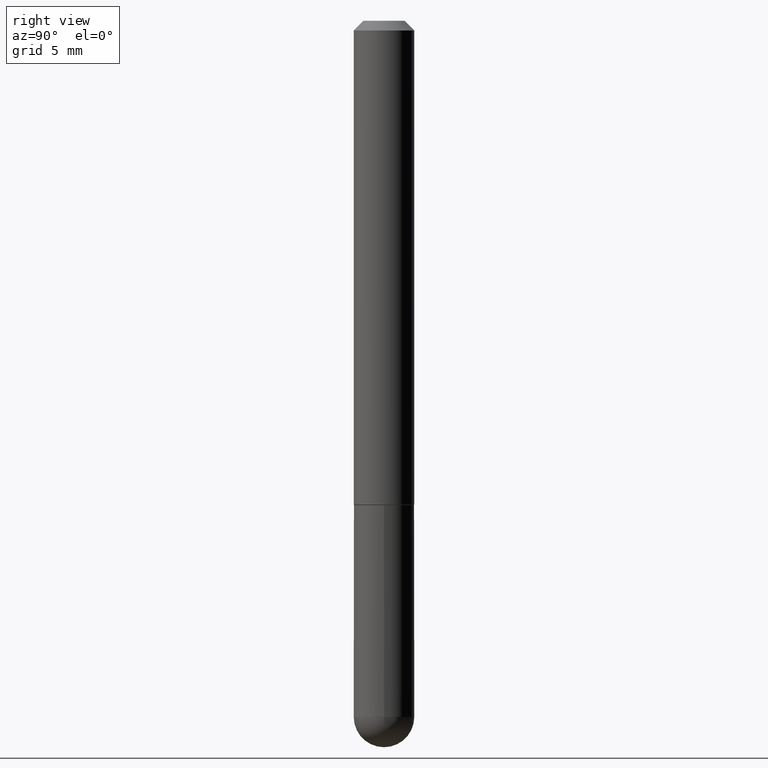
[diagram: clean part render]
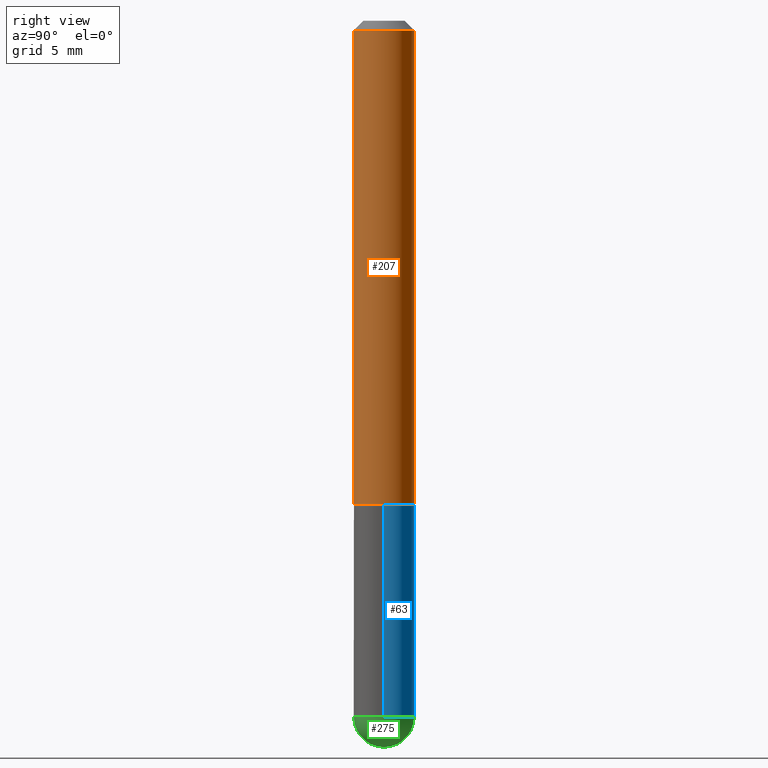
[diagram: same view with three faces highlighted in distinct colors, each labeled with its STEP entity id]
A machine part, right view with three faces highlighted in distinct colors.
Their STEP definitions:

[orange] entity #207 — the highlighted cylindrical surface (edge-blend (fillet) strip) has radius 1.5875 mm, axis along (-0, 0, 1).
#12 = AXIS2_PLACEMENT_3D ( 'NONE', #368, #58, #218 ) ;
#30 = DIRECTION ( 'NONE',  ( -6.982962677686265922E-15, -1.000000000000000000, 3.470349489417668570E-15 ) ) ;
#34 = CYLINDRICAL_SURFACE ( 'NONE', #223, 0.06250000000000004163 ) ;
#58 = DIRECTION ( 'NONE',  ( -2.460225097769995891E-29, 3.470349489417668570E-15, 1.000000000000000000 ) ) ;
#81 = EDGE_CURVE ( 'NONE', #180, #394, #355, .T. ) ;
#99 = FACE_OUTER_BOUND ( 'NONE', #231, .T. ) ;
#101 = VECTOR ( 'NONE', #112, 39.37007874015748143 ) ;
#112 = DIRECTION ( 'NONE',  ( -2.460225097769996171E-29, 3.470349489417668175E-15, 1.000000000000000000 ) ) ;
#114 = VERTEX_POINT ( 'NONE', #146 ) ;
#117 = CARTESIAN_POINT ( 'NONE',  ( 4.440892098500628134E-16, 0.06250000000000004163, -2.168968430886044335E-16 ) ) ;
#126 = DIRECTION ( 'NONE',  ( -2.460225097769995891E-29, 3.470349489417668570E-15, 1.000000000000000000 ) ) ;
#132 = EDGE_CURVE ( 'NONE', #180, #114, #170, .T. ) ;
#146 = CARTESIAN_POINT ( 'NONE',  ( 4.440892098500754352E-16, 0.06249999999999659994, -0.9990000000000002212 ) ) ;
#161 = EDGE_CURVE ( 'NONE', #114, #281, #396, .T. ) ;
#170 = CIRCLE ( 'NONE', #12, 0.06250000000000006939 ) ;
#171 = CARTESIAN_POINT ( 'NONE',  ( 4.364351673553922118E-16, 0.06249999999999995143, -0.02000000000000028491 ) ) ;
#173 = DIRECTION ( 'NONE',  ( -2.460225097769995891E-29, 3.470349489417668570E-15, 1.000000000000000000 ) ) ;
#174 = CARTESIAN_POINT ( 'NONE',  ( -4.364351673553675105E-16, -0.06250000000000353884, -0.9989999999999996660 ) ) ;
#180 = VERTEX_POINT ( 'NONE', #174 ) ;
#194 = CARTESIAN_POINT ( 'NONE',  ( -4.364351673553919159E-16, -0.06250000000000004163, 2.168968430886044335E-16 ) ) ;
#206 = CARTESIAN_POINT ( 'NONE',  ( -4.287811248607203282E-16, -0.06250000000000008327, -0.01999999999999985123 ) ) ;
#207 = ADVANCED_FACE ( 'NONE', ( #99 ), #34, .T. ) ;
#213 = CIRCLE ( 'NONE', #247, 0.06250000000000001388 ) ;
#218 = DIRECTION ( 'NONE',  ( -6.982962677686265922E-15, -1.000000000000000000, 4.370956789862816416E-15 ) ) ;
#221 = ORIENTED_EDGE ( 'NONE', *, *, #132, .T. ) ;
#223 = AXIS2_PLACEMENT_3D ( 'NONE', #288, #126, #30 ) ;
#231 = EDGE_LOOP ( 'NONE', ( #221, #376, #267, #332 ) ) ;
#234 = VECTOR ( 'NONE', #238, 39.37007874015748143 ) ;
#238 = DIRECTION ( 'NONE',  ( -2.460225097769996171E-29, 3.470349489417668175E-15, 1.000000000000000000 ) ) ;
#247 = AXIS2_PLACEMENT_3D ( 'NONE', #334, #173, #301 ) ;
#267 = ORIENTED_EDGE ( 'NONE', *, *, #405, .F. ) ;
#281 = VERTEX_POINT ( 'NONE', #171 ) ;
#288 = CARTESIAN_POINT ( 'NONE',  ( 0.000000000000000000, 0.000000000000000000, 0.000000000000000000 ) ) ;
#301 = DIRECTION ( 'NONE',  ( -6.982962677686265922E-15, -1.000000000000000000, 3.483106191921934765E-15 ) ) ;
#332 = ORIENTED_EDGE ( 'NONE', *, *, #81, .F. ) ;
#334 = CARTESIAN_POINT ( 'NONE',  ( 4.920450195540008493E-31, -6.940698978835360115E-17, -0.02000000000000006981 ) ) ;
#355 = LINE ( 'NONE', #194, #101 ) ;
#368 = CARTESIAN_POINT ( 'NONE',  ( 2.457764872672225560E-29, -3.466879139928250536E-15, -0.9989999999999998881 ) ) ;
#376 = ORIENTED_EDGE ( 'NONE', *, *, #161, .T. ) ;
#394 = VERTEX_POINT ( 'NONE', #206 ) ;
#396 = LINE ( 'NONE', #117, #234 ) ;
#405 = EDGE_CURVE ( 'NONE', #394, #281, #213, .T. ) ;

[blue] entity #63 — the highlighted cylindrical surface (edge-blend (fillet) strip) has radius 1.5875 mm, axis along (-0, 0, 1).
#11 = CIRCLE ( 'NONE', #351, 0.06250000000000001388 ) ;
#17 = EDGE_LOOP ( 'NONE', ( #271, #160, #258, #317, #130 ) ) ;
#29 = VERTEX_POINT ( 'NONE', #197 ) ;
#32 = CARTESIAN_POINT ( 'NONE',  ( 0.06250000000000001388, -3.927916506198536858E-15, -0.9999999999999996669 ) ) ;
#42 = VERTEX_POINT ( 'NONE', #327 ) ;
#46 = AXIS2_PLACEMENT_3D ( 'NONE', #242, #369, #290 ) ;
#59 = EDGE_CURVE ( 'NONE', #42, #389, #235, .T. ) ;
#63 = ADVANCED_FACE ( 'NONE', ( #395 ), #363, .T. ) ;
#73 = CARTESIAN_POINT ( 'NONE',  ( -0.06249999999999997918, 4.440892098500624683E-16, -3.074334431409315413E-30 ) ) ;
#77 = CARTESIAN_POINT ( 'NONE',  ( 0.000000000000000000, 0.000000000000000000, 0.000000000000000000 ) ) ;
#94 = CARTESIAN_POINT ( 'NONE',  ( 2.445468806185136036E-29, -3.491481338843144399E-15, -0.9999999999999996669 ) ) ;
#100 = EDGE_CURVE ( 'NONE', #148, #29, #365, .T. ) ;
#116 = CARTESIAN_POINT ( 'NONE',  ( 0.06249999999999997918, -4.364351673553915708E-16, 3.047610484872459170E-30 ) ) ;
#125 = EDGE_CURVE ( 'NONE', #200, #389, #11, .T. ) ;
#130 = ORIENTED_EDGE ( 'NONE', *, *, #100, .T. ) ;
#140 = AXIS2_PLACEMENT_3D ( 'NONE', #172, #337, #181 ) ;
#141 = DIRECTION ( 'NONE',  ( -2.445468806185136877E-29, 3.491481338843145188E-15, 1.000000000000000000 ) ) ;
#148 = VERTEX_POINT ( 'NONE', #344 ) ;
#160 = ORIENTED_EDGE ( 'NONE', *, *, #59, .T. ) ;
#172 = CARTESIAN_POINT ( 'NONE',  ( 3.515361408891131616E-29, -5.019004424587019187E-15, -1.437499999999999112 ) ) ;
#181 = DIRECTION ( 'NONE',  ( 1.000000000000000000, -6.982962677686268288E-15, 0.000000000000000000 ) ) ;
#197 = CARTESIAN_POINT ( 'NONE',  ( 4.364351673554260835E-16, 0.06249999999999487910, -1.437499999999999334 ) ) ;
#200 = VERTEX_POINT ( 'NONE', #32 ) ;
#225 = AXIS2_PLACEMENT_3D ( 'NONE', #77, #393, #321 ) ;
#235 = LINE ( 'NONE', #73, #359 ) ;
#237 = DIRECTION ( 'NONE',  ( -2.445468806185136877E-29, 3.491481338843145188E-15, 1.000000000000000000 ) ) ;
#241 = DIRECTION ( 'NONE',  ( 1.000000000000000000, -6.982962677686269077E-15, 0.000000000000000000 ) ) ;
#242 = CARTESIAN_POINT ( 'NONE',  ( 3.515361408891131616E-29, -5.019004424587019187E-15, -1.437499999999999112 ) ) ;
#258 = ORIENTED_EDGE ( 'NONE', *, *, #125, .F. ) ;
#271 = ORIENTED_EDGE ( 'NONE', *, *, #366, .T. ) ;
#274 = DIRECTION ( 'NONE',  ( -2.445468806185136597E-29, 3.491481338843145583E-15, 1.000000000000000000 ) ) ;
#290 = DIRECTION ( 'NONE',  ( 1.000000000000000000, -6.982962677686268288E-15, 0.000000000000000000 ) ) ;
#291 = EDGE_CURVE ( 'NONE', #148, #200, #331, .T. ) ;
#317 = ORIENTED_EDGE ( 'NONE', *, *, #291, .F. ) ;
#321 = DIRECTION ( 'NONE',  ( 1.000000000000000000, -6.982962677686267499E-15, 4.876176775795936353E-29 ) ) ;
#327 = CARTESIAN_POINT ( 'NONE',  ( -0.06249999999999995143, -3.811153671865019966E-15, -1.437499999999999112 ) ) ;
#331 = LINE ( 'NONE', #116, #380 ) ;
#337 = DIRECTION ( 'NONE',  ( -2.445468806185136597E-29, 3.491481338843145583E-15, 1.000000000000000000 ) ) ;
#340 = CIRCLE ( 'NONE', #46, 0.06249999999999995143 ) ;
#344 = CARTESIAN_POINT ( 'NONE',  ( 0.06249999999999995143, -4.691678049070473462E-15, -1.437499999999999112 ) ) ;
#351 = AXIS2_PLACEMENT_3D ( 'NONE', #94, #274, #241 ) ;
#359 = VECTOR ( 'NONE', #141, 39.37007874015748143 ) ;
#363 = CYLINDRICAL_SURFACE ( 'NONE', #225, 0.06249999999999997918 ) ;
#364 = CARTESIAN_POINT ( 'NONE',  ( -0.06250000000000001388, -3.811153671865019177E-15, -0.9999999999999996669 ) ) ;
#365 = CIRCLE ( 'NONE', #140, 0.06249999999999995143 ) ;
#366 = EDGE_CURVE ( 'NONE', #29, #42, #340, .T. ) ;
#369 = DIRECTION ( 'NONE',  ( -2.445468806185136597E-29, 3.491481338843145583E-15, 1.000000000000000000 ) ) ;
#380 = VECTOR ( 'NONE', #237, 39.37007874015748143 ) ;
#389 = VERTEX_POINT ( 'NONE', #364 ) ;
#393 = DIRECTION ( 'NONE',  ( -2.445468806185136597E-29, 3.491481338843145583E-15, 1.000000000000000000 ) ) ;
#395 = FACE_OUTER_BOUND ( 'NONE', #17, .T. ) ;

[green] entity #275 — the highlighted spherical surface has radius 1.5875 mm.
#27 = EDGE_CURVE ( 'NONE', #44, #29, #307, .T. ) ;
#29 = VERTEX_POINT ( 'NONE', #197 ) ;
#33 = CIRCLE ( 'NONE', #346, 0.06250000000000031919 ) ;
#40 = AXIS2_PLACEMENT_3D ( 'NONE', #295, #330, #266 ) ;
#43 = CARTESIAN_POINT ( 'NONE',  ( 3.339755826017505008E-29, -5.707577355157432999E-15, -1.499999999999999778 ) ) ;
#44 = VERTEX_POINT ( 'NONE', #43 ) ;
#48 = EDGE_CURVE ( 'NONE', #276, #148, #222, .T. ) ;
#52 = FACE_OUTER_BOUND ( 'NONE', #391, .T. ) ;
#84 = EDGE_CURVE ( 'NONE', #44, #276, #33, .T. ) ;
#88 = DIRECTION ( 'NONE',  ( -1.000000000000000000, 6.982962677686265922E-15, -4.883557194083112901E-29 ) ) ;
#100 = EDGE_CURVE ( 'NONE', #148, #29, #365, .T. ) ;
#115 = DIRECTION ( 'NONE',  ( 1.000000000000000000, -6.982962677686265922E-15, 4.883557194083112340E-29 ) ) ;
#140 = AXIS2_PLACEMENT_3D ( 'NONE', #172, #337, #181 ) ;
#143 = ORIENTED_EDGE ( 'NONE', *, *, #27, .T. ) ;
#148 = VERTEX_POINT ( 'NONE', #344 ) ;
#172 = CARTESIAN_POINT ( 'NONE',  ( 3.515361408891131616E-29, -5.019004424587019187E-15, -1.437499999999999112 ) ) ;
#181 = DIRECTION ( 'NONE',  ( 1.000000000000000000, -6.982962677686268288E-15, 0.000000000000000000 ) ) ;
#197 = CARTESIAN_POINT ( 'NONE',  ( 4.364351673554260835E-16, 0.06249999999999487910, -1.437499999999999334 ) ) ;
#216 = DIRECTION ( 'NONE',  ( 6.982962677686265922E-15, 1.000000000000000000, -4.370956789862798273E-15 ) ) ;
#222 = CIRCLE ( 'NONE', #40, 0.06249999999999995143 ) ;
#232 = CARTESIAN_POINT ( 'NONE',  ( 3.184241630977247050E-29, -5.493186792727071060E-15, -1.437499999999999556 ) ) ;
#236 = DIRECTION ( 'NONE',  ( -7.105427357601001859E-15, -1.000000000000000000, 0.000000000000000000 ) ) ;
#248 = ORIENTED_EDGE ( 'NONE', *, *, #48, .F. ) ;
#250 = ORIENTED_EDGE ( 'NONE', *, *, #84, .F. ) ;
#266 = DIRECTION ( 'NONE',  ( 1.000000000000000000, -6.982962677686268288E-15, 0.000000000000000000 ) ) ;
#275 = ADVANCED_FACE ( 'NONE', ( #52 ), #345, .T. ) ;
#276 = VERTEX_POINT ( 'NONE', #406 ) ;
#294 = DIRECTION ( 'NONE',  ( 6.982962677686265922E-15, 1.000000000000000000, 0.000000000000000000 ) ) ;
#295 = CARTESIAN_POINT ( 'NONE',  ( 3.515361408891131616E-29, -5.019004424587019187E-15, -1.437499999999999112 ) ) ;
#307 = CIRCLE ( 'NONE', #373, 0.06250000000000031919 ) ;
#318 = AXIS2_PLACEMENT_3D ( 'NONE', #375, #88, #216 ) ;
#324 = CARTESIAN_POINT ( 'NONE',  ( 3.184241630977247050E-29, -5.493186792727071060E-15, -1.437499999999999556 ) ) ;
#330 = DIRECTION ( 'NONE',  ( -2.445468806185136597E-29, 3.491481338843145583E-15, 1.000000000000000000 ) ) ;
#337 = DIRECTION ( 'NONE',  ( -2.445468806185136597E-29, 3.491481338843145583E-15, 1.000000000000000000 ) ) ;
#344 = CARTESIAN_POINT ( 'NONE',  ( 0.06249999999999995143, -4.691678049070473462E-15, -1.437499999999999112 ) ) ;
#345 = SPHERICAL_SURFACE ( 'NONE', #318, 0.06250000000000031919 ) ;
#346 = AXIS2_PLACEMENT_3D ( 'NONE', #324, #358, #236 ) ;
#356 = ORIENTED_EDGE ( 'NONE', *, *, #100, .F. ) ;
#358 = DIRECTION ( 'NONE',  ( -1.000000000000000000, 7.105427357601001070E-15, -4.926315508542082329E-29 ) ) ;
#365 = CIRCLE ( 'NONE', #140, 0.06249999999999995143 ) ;
#373 = AXIS2_PLACEMENT_3D ( 'NONE', #232, #115, #294 ) ;
#375 = CARTESIAN_POINT ( 'NONE',  ( 3.184241630977247050E-29, -5.493186792727071060E-15, -1.437499999999999556 ) ) ;
#391 = EDGE_LOOP ( 'NONE', ( #250, #143, #356, #248 ) ) ;
#406 = CARTESIAN_POINT ( 'NONE',  ( -4.440892098500299770E-16, -0.06250000000000539846, -1.437499999999998890 ) ) ;